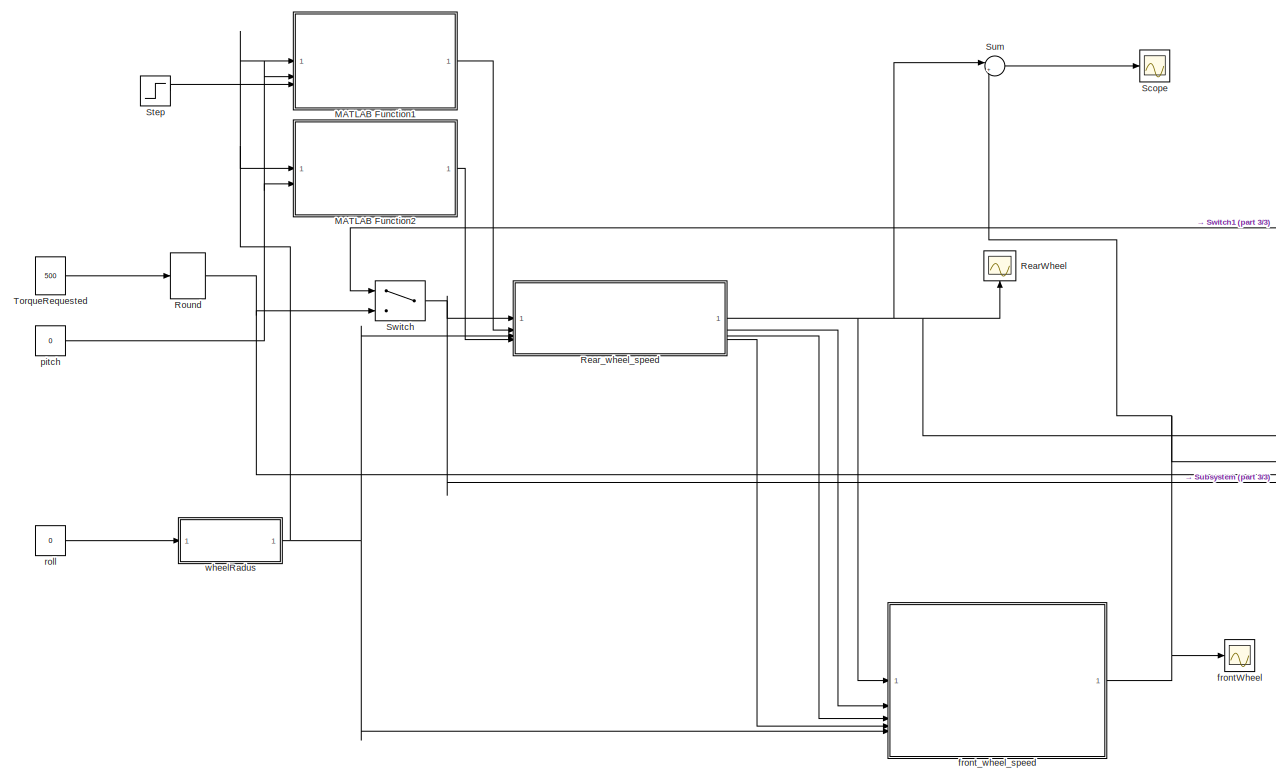
[diagram: root canvas - part 1/3, center side, full height]
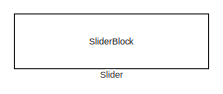
[diagram: root canvas - part 2/3, middle left region]
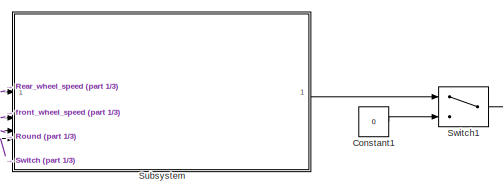
[diagram: root canvas - part 3/3, middle right region]
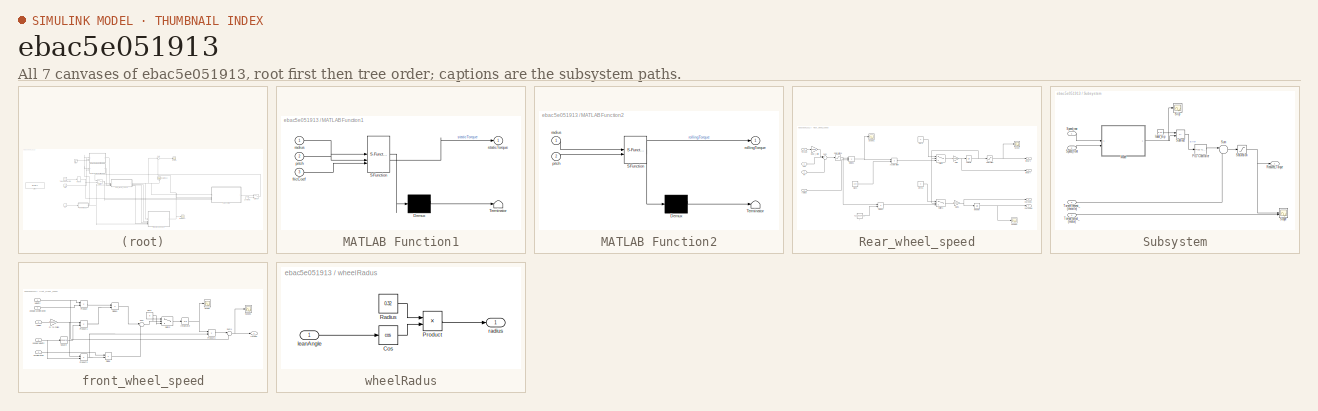
[diagram: thumbnail index - all 7 canvases of the model, root first then tree order]
MODEL slx_ebac5e051913
KIND model
CONFIG AbsTol = auto
CONFIG EnableMultiTasking = off
CONFIG FixedStep = .001
CONFIG MaxStep = auto
CONFIG MinStep = auto
CONFIG RelTol = 1e-3
CONFIG SampleTimeConstraint = Unconstrained
CONFIG SolverName = ode5
CONFIG StartTime = 0.0
CONFIG StopTime = 10
BLOCK [Constant] Constant1
  Value = 0
BLOCK [SubSystem] MATLAB Function1
  ErrorFcn = Stateflow.Translate.translate
  LibrarySourceBlock = simulink/User-Defined\nFunctions/MATLAB Function
  PermitHierarchicalResolution = ExplicitOnly
  SFBlockType = MATLAB Function
  TreatAsAtomicUnit = on
BLOCK [Demux] MATLAB Function1/ Demux 
  Outputs = 1
BLOCK [S-Function] MATLAB Function1/ SFunction 
  EnableBusSupport = on
  FunctionName = sf_sfun
  PortCounts = [3 2]
  SFcnIsStateOwnerBlock = off
  SFunctionDeploymentMode = off
  Tag = Stateflow S-Function 2
BLOCK [Terminator] MATLAB Function1/ Terminator 
BLOCK [Inport] MATLAB Function1/fricCoef
  Port = 3
BLOCK [Inport] MATLAB Function1/pitch
  Port = 2
BLOCK [Inport] MATLAB Function1/radius
BLOCK [Outport] MATLAB Function1/staticTorque
BLOCK [SubSystem] MATLAB Function2
  ErrorFcn = Stateflow.Translate.translate
  LibrarySourceBlock = simulink/User-Defined\nFunctions/MATLAB Function
  PermitHierarchicalResolution = ExplicitOnly
  SFBlockType = MATLAB Function
  TreatAsAtomicUnit = on
BLOCK [Demux] MATLAB Function2/ Demux 
  Outputs = 1
BLOCK [S-Function] MATLAB Function2/ SFunction 
  EnableBusSupport = on
  FunctionName = sf_sfun
  PortCounts = [2 2]
  SFcnIsStateOwnerBlock = off
  SFunctionDeploymentMode = off
  Tag = Stateflow S-Function 1
BLOCK [Terminator] MATLAB Function2/ Terminator 
BLOCK [Inport] MATLAB Function2/pitch
  Port = 2
BLOCK [Inport] MATLAB Function2/radius
BLOCK [Outport] MATLAB Function2/rollingTorque
BLOCK [Scope] RearWheel
  Floating = off
  NameLocation = right
  NumInputPorts = 1
  ScopeSpecificationString = Simulink.scopes.TimeScopeBlockCfg('CurrentConfiguration', extmgr.ConfigurationSet(extmgr.Configuration('Core','General UI',true),extmgr.Configuration('Core','Source UI',true),extmgr.Configuration('Sources','WiredSimulink',true,'DataLoggingVariableName','ScopeData2'),extmgr.Configuration('Visuals','Time Domain',true,'SerializedDisplays',{struct('MinYLimReal','-22.75','MaxYLimReal','204.75','YLabelR...<+1463ch>
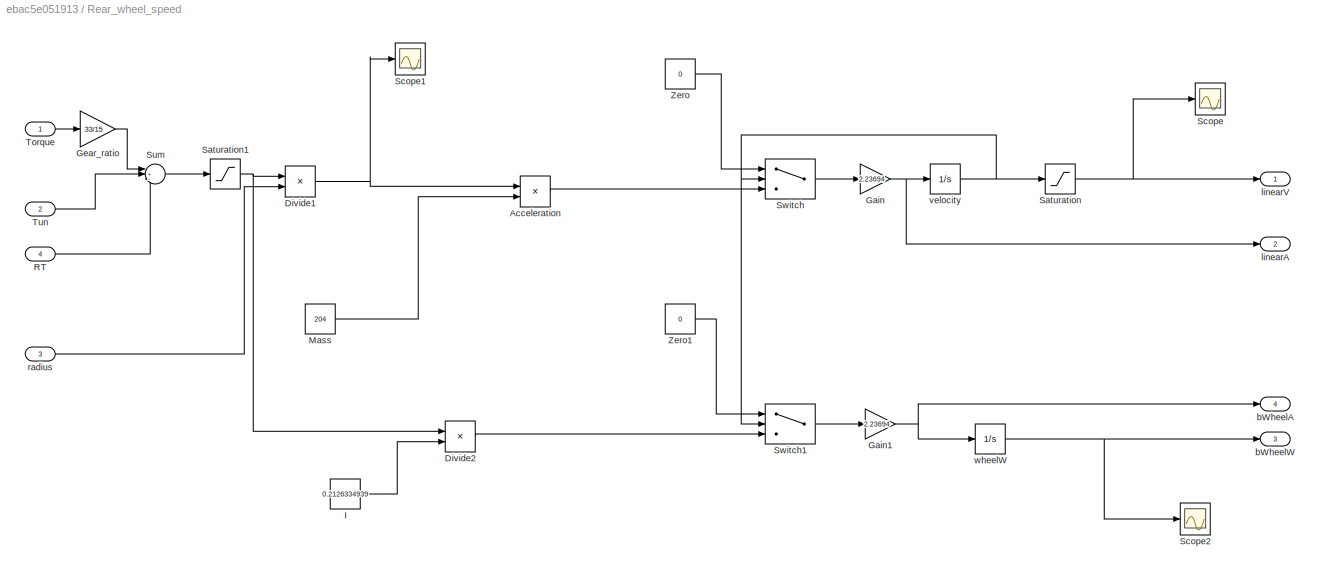
BLOCK [SubSystem] Rear_wheel_speed
BLOCK [Product] Rear_wheel_speed/Acceleration
  Inputs = */
BLOCK [Product] Rear_wheel_speed/Divide1
  Inputs = */
BLOCK [Product] Rear_wheel_speed/Divide2
  Inputs = */
BLOCK [Gain] Rear_wheel_speed/Gain
  Gain = 2.23694
BLOCK [Gain] Rear_wheel_speed/Gain1
  Gain = 2.23694
BLOCK [Gain] Rear_wheel_speed/Gear_ratio
  Gain = 33/15
BLOCK [Constant] Rear_wheel_speed/I
  Value = 0.2126334939
BLOCK [Constant] Rear_wheel_speed/Mass
  Value = 204
BLOCK [Inport] Rear_wheel_speed/RT
  Port = 4
BLOCK [Saturate] Rear_wheel_speed/Saturation
  LowerLimit = 0
  UpperLimit = 182
BLOCK [Saturate] Rear_wheel_speed/Saturation1
  LowerLimit = 0
  UpperLimit = inf
BLOCK [Scope] Rear_wheel_speed/Scope
  Floating = off
  NumInputPorts = 1
  ScopeSpecificationString = Simulink.scopes.TimeScopeBlockCfg('CurrentConfiguration', extmgr.ConfigurationSet(extmgr.Configuration('Core','General UI',true),extmgr.Configuration('Core','Source UI',true),extmgr.Configuration('Sources','WiredSimulink',true,'DataLoggingVariableName','ScopeData5'),extmgr.Configuration('Visuals','Time Domain',true,'SerializedDisplays',{struct('MinYLimReal','-22.75','MaxYLimReal','204.75','YLabelR...<+1439ch>
BLOCK [Scope] Rear_wheel_speed/Scope1
  Floating = off
  NumInputPorts = 1
  ScopeSpecificationString = Simulink.scopes.TimeScopeBlockCfg('CurrentConfiguration', extmgr.ConfigurationSet(extmgr.Configuration('Core','General UI',true),extmgr.Configuration('Core','Source UI',true),extmgr.Configuration('Sources','WiredSimulink',true,'DataLoggingVariableName','ScopeData1'),extmgr.Configuration('Visuals','Time Domain',true,'SerializedDisplays',{struct('MinYLimReal','2328.35375','MaxYLimReal','2477.56625',...<+1461ch>
BLOCK [Scope] Rear_wheel_speed/Scope2
  Floating = off
  NumInputPorts = 1
  ScopeSpecificationString = Simulink.scopes.TimeScopeBlockCfg('CurrentConfiguration', extmgr.ConfigurationSet(extmgr.Configuration('Core','General UI',true),extmgr.Configuration('Core','Source UI',true),extmgr.Configuration('Sources','WiredSimulink',true,'DataLoggingVariableName','ScopeData5'),extmgr.Configuration('Visuals','Time Domain',true,'SerializedDisplays',{struct('MinYLimReal','17632.05958','MaxYLimReal','17632.88706...<+1443ch>
BLOCK [Sum] Rear_wheel_speed/Sum
  Inputs = |+-+
BLOCK [Switch] Rear_wheel_speed/Switch
  InputSameDT = off
  SaturateOnIntegerOverflow = off
  Threshold = 182
BLOCK [Switch] Rear_wheel_speed/Switch1
  InputSameDT = off
  SaturateOnIntegerOverflow = off
  Threshold = 182
BLOCK [Inport] Rear_wheel_speed/Torque
BLOCK [Inport] Rear_wheel_speed/Tun
  Port = 2
BLOCK [Constant] Rear_wheel_speed/Zero
  OutDataTypeStr = Inherit: Inherit via back propagation
  Value = 0
BLOCK [Constant] Rear_wheel_speed/Zero1
  OutDataTypeStr = Inherit: Inherit via back propagation
  Value = 0
BLOCK [Outport] Rear_wheel_speed/bWheelA
  Port = 4
BLOCK [Outport] Rear_wheel_speed/bWheelW
  Port = 3
BLOCK [Outport] Rear_wheel_speed/linearA
  Port = 2
BLOCK [Outport] Rear_wheel_speed/linearV
BLOCK [Inport] Rear_wheel_speed/radius
  Port = 3
BLOCK [Integrator] Rear_wheel_speed/velocity
BLOCK [Integrator] Rear_wheel_speed/wheelW
BLOCK [Rounding] Round
  Operator = round
BLOCK [Scope] Scope
  Floating = off
  NumInputPorts = 1
  ScopeSpecificationString = Simulink.scopes.TimeScopeBlockCfg('CurrentConfiguration', extmgr.ConfigurationSet(extmgr.Configuration('Core','General UI',true),extmgr.Configuration('Core','Source UI',true),extmgr.Configuration('Sources','WiredSimulink',true,'DataLoggingVariableName','ScopeData3'),extmgr.Configuration('Visuals','Time Domain',true,'SerializedDisplays',{struct('MinYLimReal','-0.000000000003','MaxYLimReal','0.00000...<+1462ch>
BLOCK [SliderBlock] Slider
  ScaleMax = 500
BLOCK [Step] Step
  Before = 1.12
  SampleTime = 0
  Time = 5
BLOCK [SubSystem] Subsystem
BLOCK [Constant] Subsystem/Ideal_slip
  Value = 0.14
BLOCK [ModelReference] Subsystem/Model
  ModelNameDialog = Slip_ratio.slx
  ModelReferenceVersion = 2.2
BLOCK [Reference] Subsystem/PID Controller  REF=slpidlib/PID Controller
  LibrarySourceBlock = simulink/Continuous/PID Controller
  SourceBlock = slpidlib/PID Controller
  SourceType = PID 1dof
BLOCK [Outport] Subsystem/Reduced_Torque
BLOCK [Saturate] Subsystem/Saturation
  LowerLimit = 0
  UpperLimit = 320
BLOCK [Scope] Subsystem/Scope
  Floating = off
  NumInputPorts = 2
  ScopeSpecificationString = Simulink.scopes.TimeScopeBlockCfg('CurrentConfiguration', extmgr.ConfigurationSet(extmgr.Configuration('Core','General UI',true),extmgr.Configuration('Core','Source UI',true),extmgr.Configuration('Sources','WiredSimulink',true),extmgr.Configuration('Visuals','Time Domain',true),extmgr.Configuration('Tools','Plot Navigation',true),extmgr.Configuration('Tools','Measurements',true)),'Version','2023b'...<+1ch>
BLOCK [Scope] Subsystem/Slip
  Floating = off
  NumInputPorts = 1
  ScopeSpecificationString = Simulink.scopes.TimeScopeBlockCfg('CurrentConfiguration', extmgr.ConfigurationSet(extmgr.Configuration('Core','General UI',true),extmgr.Configuration('Core','Source UI',true),extmgr.Configuration('Sources','WiredSimulink',true,'DataLoggingVariableName','ScopeData3'),extmgr.Configuration('Visuals','Time Domain',true,'SerializedDisplays',{struct('MinYLimReal','-0.01389','MaxYLimReal','0.125','YLabel...<+1356ch>
BLOCK [Inport] Subsystem/Speed_front
  Port = 2
BLOCK [Inport] Subsystem/Speed_rear
BLOCK [Sum] Subsystem/Subtract
  IconShape = rectangular
  Inputs = +-
BLOCK [Sum] Subsystem/Sum
  Inputs = |-+
BLOCK [Inport] Subsystem/Torque_output_(motor)
  Port = 4
BLOCK [Inport] Subsystem/Torque_request_(throttle)
  Port = 3
BLOCK [Sum] Sum
  Inputs = |+-
BLOCK [Switch] Switch
  Criteria = u2 > Threshold
  InputSameDT = off
  SaturateOnIntegerOverflow = off
BLOCK [Switch] Switch1
  Criteria = u2 > Threshold
  InputSameDT = off
  SaturateOnIntegerOverflow = off
  Threshold = 5
BLOCK [Constant] TorqueRequested
  Value = 500
BLOCK [Scope] frontWheel
  Floating = off
  NumInputPorts = 1
  ScopeSpecificationString = Simulink.scopes.TimeScopeBlockCfg('CurrentConfiguration', extmgr.ConfigurationSet(extmgr.Configuration('Core','General UI',true),extmgr.Configuration('Core','Source UI',true),extmgr.Configuration('Sources','WiredSimulink',true,'DataLoggingVariableName','ScopeData4'),extmgr.Configuration('Visuals','Time Domain',true,'SerializedDisplays',{struct('MinYLimReal','-22.75','MaxYLimReal','204.75','YLabelR...<+1448ch>
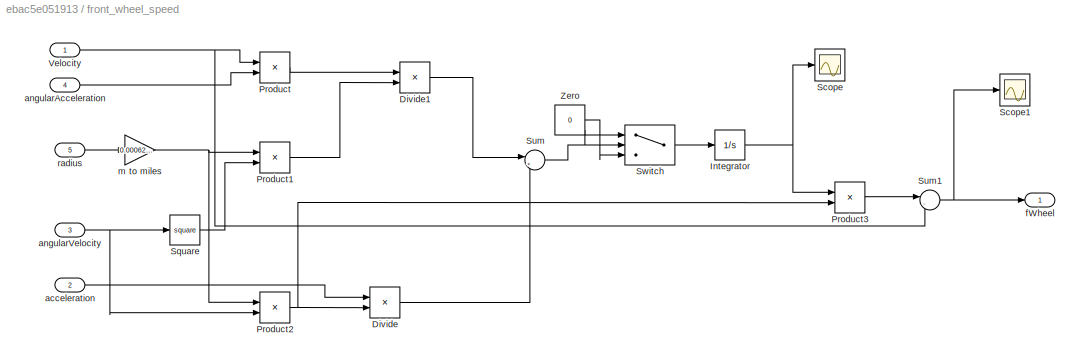
BLOCK [SubSystem] front_wheel_speed
BLOCK [Product] front_wheel_speed/Divide
  Inputs = */
BLOCK [Product] front_wheel_speed/Divide1
  Inputs = */
BLOCK [Integrator] front_wheel_speed/Integrator
BLOCK [Product] front_wheel_speed/Product
BLOCK [Product] front_wheel_speed/Product1
BLOCK [Product] front_wheel_speed/Product2
BLOCK [Product] front_wheel_speed/Product3
BLOCK [Scope] front_wheel_speed/Scope
  Floating = off
  NumInputPorts = 1
  ScopeSpecificationString = Simulink.scopes.TimeScopeBlockCfg('CurrentConfiguration', extmgr.ConfigurationSet(extmgr.Configuration('Core','General UI',true),extmgr.Configuration('Core','Source UI',true),extmgr.Configuration('Sources','WiredSimulink',true,'DataLoggingVariableName','ScopeData1'),extmgr.Configuration('Visuals','Time Domain',true,'SerializedDisplays',{struct('MinYLimReal','-0.0000000000002','MaxYLimReal','0.0000...<+1462ch>
BLOCK [Scope] front_wheel_speed/Scope1
  Floating = off
  NumInputPorts = 1
  ScopeSpecificationString = Simulink.scopes.TimeScopeBlockCfg('CurrentConfiguration', extmgr.ConfigurationSet(extmgr.Configuration('Core','General UI',true),extmgr.Configuration('Core','Source UI',true),extmgr.Configuration('Sources','WiredSimulink',true,'DataLoggingVariableName','ScopeData2'),extmgr.Configuration('Visuals','Time Domain',true,'SerializedDisplays',{struct('MinYLimReal','-22.75','MaxYLimReal','204.75','YLabelR...<+1355ch>
BLOCK [Math] front_wheel_speed/Square
  Operator = square
BLOCK [Sum] front_wheel_speed/Sum
  Inputs = |+-
BLOCK [Sum] front_wheel_speed/Sum1
  Inputs = |-+
BLOCK [Switch] front_wheel_speed/Switch
  Criteria = u2 > Threshold
  InputSameDT = off
  SaturateOnIntegerOverflow = off
BLOCK [Inport] front_wheel_speed/Velocity
BLOCK [Constant] front_wheel_speed/Zero
  OutDataTypeStr = Inherit: Inherit via back propagation
  Value = 0
BLOCK [Inport] front_wheel_speed/acceleration
  Port = 2
BLOCK [Inport] front_wheel_speed/angularAcceleration
  Port = 4
BLOCK [Inport] front_wheel_speed/angularVelocity
  Port = 3
BLOCK [Outport] front_wheel_speed/fWheel
BLOCK [Gain] front_wheel_speed/m to miles
  Gain = 0.000621371
BLOCK [Inport] front_wheel_speed/radius
  Port = 5
BLOCK [Constant] pitch
  Value = 0
BLOCK [Constant] roll
  Value = 0
BLOCK [SubSystem] wheelRadus
BLOCK [Trigonometry] wheelRadus/Cos
  Operator = cos
BLOCK [Product] wheelRadus/Product
BLOCK [Constant] wheelRadus/Radius
  Value = 0.32
BLOCK [Inport] wheelRadus/leanAngle
BLOCK [Outport] wheelRadus/radius
LINE Constant1:1 -> Switch1:3
LINE MATLAB Function1:1 -> Rear_wheel_speed:2
LINE MATLAB Function2:1 -> Rear_wheel_speed:4
LINE Rear_wheel_speed/Acceleration:1 -> Rear_wheel_speed/Switch:3
NET Rear_wheel_speed/Divide1:1 -> Rear_wheel_speed/Acceleration:1, Rear_wheel_speed/Scope1:1
LINE Rear_wheel_speed/Divide2:1 -> Rear_wheel_speed/Switch1:3
NET Rear_wheel_speed/Gain1:1 -> Rear_wheel_speed/bWheelA:1, Rear_wheel_speed/wheelW:1
NET Rear_wheel_speed/Gain:1 -> Rear_wheel_speed/linearA:1, Rear_wheel_speed/velocity:1
LINE Rear_wheel_speed/Gear_ratio:1 -> Rear_wheel_speed/Sum:1
LINE Rear_wheel_speed/I:1 -> Rear_wheel_speed/Divide2:2
LINE Rear_wheel_speed/Mass:1 -> Rear_wheel_speed/Acceleration:2
LINE Rear_wheel_speed/RT:1 -> Rear_wheel_speed/Sum:3
NET Rear_wheel_speed/Saturation1:1 -> Rear_wheel_speed/Divide1:1, Rear_wheel_speed/Divide2:1
NET Rear_wheel_speed/Saturation:1 -> Rear_wheel_speed/Scope:1, Rear_wheel_speed/linearV:1
LINE Rear_wheel_speed/Sum:1 -> Rear_wheel_speed/Saturation1:1
LINE Rear_wheel_speed/Switch1:1 -> Rear_wheel_speed/Gain1:1
LINE Rear_wheel_speed/Switch:1 -> Rear_wheel_speed/Gain:1
LINE Rear_wheel_speed/Torque:1 -> Rear_wheel_speed/Gear_ratio:1
LINE Rear_wheel_speed/Tun:1 -> Rear_wheel_speed/Sum:2
LINE Rear_wheel_speed/Zero1:1 -> Rear_wheel_speed/Switch1:1
LINE Rear_wheel_speed/Zero:1 -> Rear_wheel_speed/Switch:1
LINE Rear_wheel_speed/radius:1 -> Rear_wheel_speed/Divide1:2
NET Rear_wheel_speed/velocity:1 -> Rear_wheel_speed/Saturation:1, Rear_wheel_speed/Switch1:2, Rear_wheel_speed/Switch:2
NET Rear_wheel_speed/wheelW:1 -> Rear_wheel_speed/Scope2:1, Rear_wheel_speed/bWheelW:1
NET Rear_wheel_speed:1 -> RearWheel:1, Subsystem:1, Sum:1, front_wheel_speed:1
LINE Rear_wheel_speed:2 -> front_wheel_speed:2
LINE Rear_wheel_speed:3 -> front_wheel_speed:3
LINE Rear_wheel_speed:4 -> front_wheel_speed:4
NET Round:1 -> Subsystem:3, Switch:3
LINE Step:1 -> MATLAB Function1:3
LINE Subsystem/Ideal_slip:1 -> Subsystem/Subtract:1
NET Subsystem/Model:1 -> Subsystem/Slip:1, Subsystem/Subtract:2
LINE Subsystem/PID Controller:1 -> Subsystem/Sum:1
NET Subsystem/Saturation:1 -> Subsystem/Reduced_Torque:1, Subsystem/Scope:1
LINE Subsystem/Speed_front:1 -> Subsystem/Model:2
LINE Subsystem/Speed_rear:1 -> Subsystem/Model:1
LINE Subsystem/Subtract:1 -> Subsystem/PID Controller:1
LINE Subsystem/Sum:1 -> Subsystem/Saturation:1
LINE Subsystem/Torque_output_(motor):1 -> Subsystem/Scope:2
LINE Subsystem/Torque_request_(throttle):1 -> Subsystem/Sum:2
LINE Subsystem:1 -> Switch1:1
LINE Sum:1 -> Scope:1
LINE Switch1:1 -> Switch:1
NET Switch:1 -> Rear_wheel_speed:1, Subsystem:4
LINE TorqueRequested:1 -> Round:1
LINE front_wheel_speed/Divide1:1 -> front_wheel_speed/Sum:1
LINE front_wheel_speed/Divide:1 -> front_wheel_speed/Sum:2
NET front_wheel_speed/Integrator:1 -> front_wheel_speed/Product3:1, front_wheel_speed/Scope:1
LINE front_wheel_speed/Product1:1 -> front_wheel_speed/Divide1:2
NET front_wheel_speed/Product2:1 -> front_wheel_speed/Divide:2, front_wheel_speed/Product3:2
LINE front_wheel_speed/Product3:1 -> front_wheel_speed/Sum1:1
LINE front_wheel_speed/Product:1 -> front_wheel_speed/Divide1:1
LINE front_wheel_speed/Square:1 -> front_wheel_speed/Product1:2
NET front_wheel_speed/Sum1:1 -> front_wheel_speed/Scope1:1, front_wheel_speed/fWheel:1
NET front_wheel_speed/Sum:1 -> front_wheel_speed/Switch:1, front_wheel_speed/Switch:2
LINE front_wheel_speed/Switch:1 -> front_wheel_speed/Integrator:1
NET front_wheel_speed/Velocity:1 -> front_wheel_speed/Product:1, front_wheel_speed/Sum1:2
LINE front_wheel_speed/Zero:1 -> front_wheel_speed/Switch:3
LINE front_wheel_speed/acceleration:1 -> front_wheel_speed/Divide:1
LINE front_wheel_speed/angularAcceleration:1 -> front_wheel_speed/Product:2
NET front_wheel_speed/angularVelocity:1 -> front_wheel_speed/Product2:2, front_wheel_speed/Square:1
NET front_wheel_speed/m to miles:1 -> front_wheel_speed/Product1:1, front_wheel_speed/Product2:1
LINE front_wheel_speed/radius:1 -> front_wheel_speed/m to miles:1
NET front_wheel_speed:1 -> Subsystem:2, Sum:2, frontWheel:1
NET pitch:1 -> MATLAB Function1:2, MATLAB Function2:2
LINE roll:1 -> wheelRadus:1
LINE wheelRadus/Cos:1 -> wheelRadus/Product:2
LINE wheelRadus/Product:1 -> wheelRadus/radius:1
LINE wheelRadus/Radius:1 -> wheelRadus/Product:1
LINE wheelRadus/leanAngle:1 -> wheelRadus/Cos:1
NET wheelRadus:1 -> MATLAB Function1:1, MATLAB Function2:1, Rear_wheel_speed:3, front_wheel_speed:5
note: NET lines group one-source signal fan-out (src -> all destinations, sorted); 1:1 wires keep LINE
CHART MATLAB Function2 states=1 transitions=1
  STATE_LABEL 'eML_blk_kernel()'
  STATE_LABEL 'SCRIPT:\nfunction rollingTorque = rollingTorque(radius,pitch)\n    % TCS_ACTIVE Summary of this function goes here\n    weightBike = 1989.5; %in N\n    weightDistribution = .5; % fore and aft\n    tire = .32; % in m\n    \n    Tyre_radius = radius;\n    fricCoef = 0.02;\n    Fn = weightBike*weightDistribution*cos(pitch);\n    rollingTorque = ((fricCoef * Fn) * Tyre_radius);\nend\n\n'
CHART MATLAB Function1 states=1 transitions=1
  STATE_LABEL 'eML_blk_kernel()'
  STATE_LABEL 'SCRIPT:\nfunction staticTorque = staticTorque(radius,pitch,fricCoef)\n    % TCS_ACTIVE Summary of this function goes here\n\n    e = exp(1); % Mathematical constant e\n    % Friction curve as a function of slip ratio\n    c1 = 1.2801; % Coef for dry asphalt\n\n    weightBike = 1989.5; %in N\n    weightDistribution = .5; % fore and aft\n    tire = .32; % in m\n    \n    Tyre_radius = radius;\n    %fricCoef = c1...<+110ch>'
CHART  states=0 transitions=0
CHART  states=0 transitions=0
